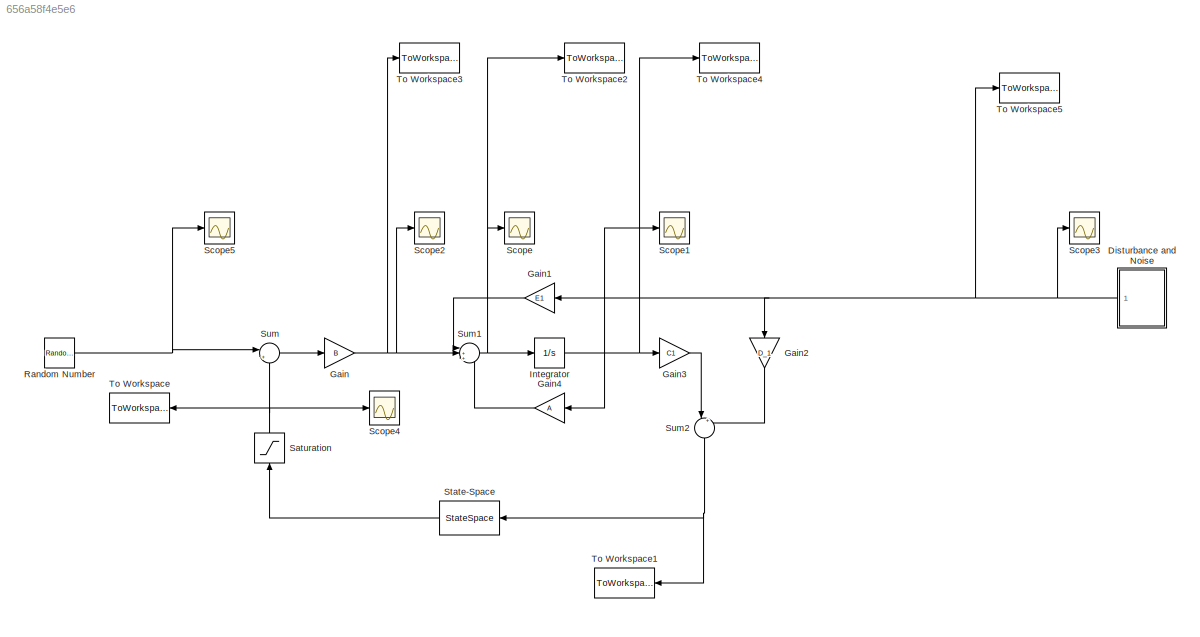
MODEL slx_656a58f4e5e6
KIND model
CONFIG AbsTol = auto
CONFIG EnableMultiTasking = off
CONFIG FixedStep = auto
CONFIG MaxStep = auto
CONFIG MinStep = auto
CONFIG RelTol = 1e-3
CONFIG SampleTimeConstraint = Unconstrained
CONFIG Solver = VariableStepAuto
CONFIG SolverName = VariableStepAuto
CONFIG StartTime = 0.0
CONFIG StopTime = 40
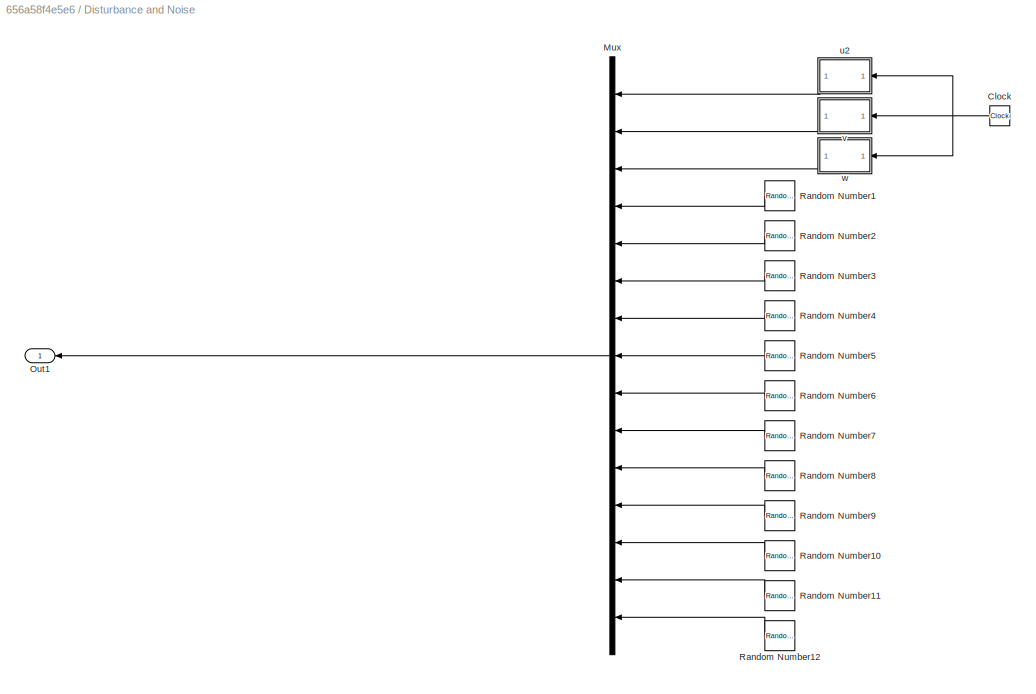
BLOCK [SubSystem] Disturbance and Noise
  Ports = [0, 1]
  RequestExecContextInheritance = off
BLOCK [Clock] Disturbance and Noise/Clock
BLOCK [Mux] Disturbance and Noise/Mux
  DisplayOption = bar
  Inputs = 15
  Ports = [15, 1]
BLOCK [Outport] Disturbance and Noise/Out1
  IconDisplay = Port number
BLOCK [RandomNumber] Disturbance and Noise/Random Number1
  SampleTime = 0.1
  Variance = 0.01
BLOCK [RandomNumber] Disturbance and Noise/Random Number10
  SampleTime = 0.1
  Seed = 9
  Variance = 0.01
BLOCK [RandomNumber] Disturbance and Noise/Random Number11
  SampleTime = 0.1
  Seed = 10
  Variance = 0.01
BLOCK [RandomNumber] Disturbance and Noise/Random Number12
  SampleTime = 0.1
  Seed = 11
  Variance = 0.01
BLOCK [RandomNumber] Disturbance and Noise/Random Number2
  SampleTime = 0.1
  Seed = 1
  Variance = 0.01
BLOCK [RandomNumber] Disturbance and Noise/Random Number3
  SampleTime = 0.1
  Seed = 2
  Variance = 0.01
BLOCK [RandomNumber] Disturbance and Noise/Random Number4
  SampleTime = 0.1
  Seed = 3
  Variance = 0.01
BLOCK [RandomNumber] Disturbance and Noise/Random Number5
  SampleTime = 0.1
  Seed = 4
  Variance = 0.01
BLOCK [RandomNumber] Disturbance and Noise/Random Number6
  SampleTime = 0.1
  Seed = 5
  Variance = 0.01
BLOCK [RandomNumber] Disturbance and Noise/Random Number7
  SampleTime = 0.1
  Seed = 6
  Variance = 0.01
BLOCK [RandomNumber] Disturbance and Noise/Random Number8
  SampleTime = 0.1
  Seed = 7
  Variance = 0.01
BLOCK [RandomNumber] Disturbance and Noise/Random Number9
  SampleTime = 0.1
  Seed = 8
  Variance = 0.01
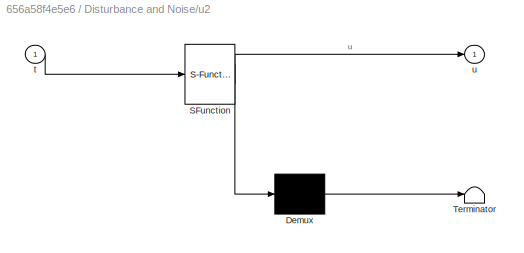
BLOCK [SubSystem] Disturbance and Noise/u2
  ErrorFcn = Stateflow.Translate.translate
  PermitHierarchicalResolution = ExplicitOnly
  Ports = [1, 1]
  RequestExecContextInheritance = off
  SFBlockType = MATLAB Function
  TreatAsAtomicUnit = on
BLOCK [Demux] Disturbance and Noise/u2/ Demux 
  Outputs = 1
  Ports = [1, 1]
BLOCK [S-Function] Disturbance and Noise/u2/ SFunction 
  EnableBusSupport = on
  FunctionName = sf_sfun
  PortCounts = [1 2]
  Ports = [1, 2]
  SFcnIsStateOwnerBlock = off
  SFunctionDeploymentMode = off
  Tag = Stateflow S-Function problem_2 2
BLOCK [Terminator] Disturbance and Noise/u2/ Terminator 
BLOCK [Inport] Disturbance and Noise/u2/t
  IconDisplay = Port number
BLOCK [Outport] Disturbance and Noise/u2/u
  IconDisplay = Port number
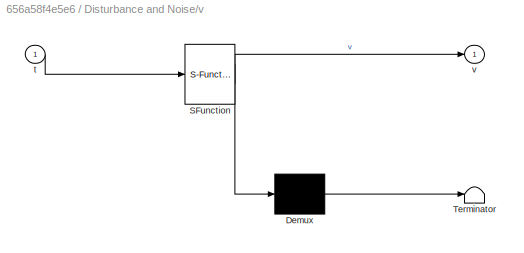
BLOCK [SubSystem] Disturbance and Noise/v
  ErrorFcn = Stateflow.Translate.translate
  PermitHierarchicalResolution = ExplicitOnly
  Ports = [1, 1]
  RequestExecContextInheritance = off
  SFBlockType = MATLAB Function
  TreatAsAtomicUnit = on
BLOCK [Demux] Disturbance and Noise/v/ Demux 
  Outputs = 1
  Ports = [1, 1]
BLOCK [S-Function] Disturbance and Noise/v/ SFunction 
  EnableBusSupport = on
  FunctionName = sf_sfun
  PortCounts = [1 2]
  Ports = [1, 2]
  SFcnIsStateOwnerBlock = off
  SFunctionDeploymentMode = off
  Tag = Stateflow S-Function problem_2 1
BLOCK [Terminator] Disturbance and Noise/v/ Terminator 
BLOCK [Inport] Disturbance and Noise/v/t
  IconDisplay = Port number
BLOCK [Outport] Disturbance and Noise/v/v
  IconDisplay = Port number
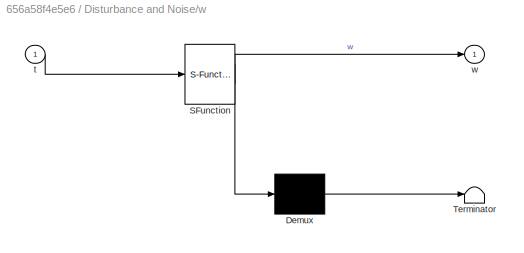
BLOCK [SubSystem] Disturbance and Noise/w
  ErrorFcn = Stateflow.Translate.translate
  PermitHierarchicalResolution = ExplicitOnly
  Ports = [1, 1]
  RequestExecContextInheritance = off
  SFBlockType = MATLAB Function
  TreatAsAtomicUnit = on
BLOCK [Demux] Disturbance and Noise/w/ Demux 
  Outputs = 1
  Ports = [1, 1]
BLOCK [S-Function] Disturbance and Noise/w/ SFunction 
  EnableBusSupport = on
  FunctionName = sf_sfun
  PortCounts = [1 2]
  Ports = [1, 2]
  SFcnIsStateOwnerBlock = off
  SFunctionDeploymentMode = off
  Tag = Stateflow S-Function problem_2 3
BLOCK [Terminator] Disturbance and Noise/w/ Terminator 
BLOCK [Inport] Disturbance and Noise/w/t
  IconDisplay = Port number
BLOCK [Outport] Disturbance and Noise/w/w
  IconDisplay = Port number
BLOCK [Gain] Gain
  Gain = B
  Multiplication = Matrix(K*u) (u vector)
  OutDataTypeStr = Inherit: Inherit via internal rule
  ParamDataTypeStr = Inherit: Inherit via internal rule
  SaturateOnIntegerOverflow = off
BLOCK [Gain] Gain1
  Gain = E1
  Multiplication = Matrix(K*u) (u vector)
  OutDataTypeStr = Inherit: Inherit via internal rule
  ParamDataTypeStr = Inherit: Inherit via internal rule
  SaturateOnIntegerOverflow = off
BLOCK [Gain] Gain2
  Gain = D_1
  Multiplication = Matrix(K*u) (u vector)
  OutDataTypeStr = Inherit: Inherit via internal rule
  ParamDataTypeStr = Inherit: Inherit via internal rule
  SaturateOnIntegerOverflow = off
BLOCK [Gain] Gain3
  Gain = C1
  Multiplication = Matrix(K*u) (u vector)
  OutDataTypeStr = Inherit: Inherit via internal rule
  ParamDataTypeStr = Inherit: Inherit via internal rule
  SaturateOnIntegerOverflow = off
BLOCK [Gain] Gain4
  Gain = A
  Multiplication = Matrix(K*u) (u vector)
  OutDataTypeStr = Inherit: Inherit via internal rule
  ParamDataTypeStr = Inherit: Inherit via internal rule
  SaturateOnIntegerOverflow = off
BLOCK [Integrator] Integrator
  Ports = [1, 1]
BLOCK [RandomNumber] Random Number
  SampleTime = 0.1
  Variance = 0.01
  VectorParams1D = off
BLOCK [Saturate] Saturation
  InputPortMap = u0
  LowerLimit = -0.35
  Ports = [1, 1]
  UpperLimit = 0.35
BLOCK [Scope] Scope
  Floating = off
  NumInputPorts = 1
  Ports = [1]
  ScopeSpecificationString = Simulink.scopes.TimeScopeBlockCfg('CurrentConfiguration', extmgr.ConfigurationSet(extmgr.Configuration('Core','General UI',true),extmgr.Configuration('Core','Source UI',true),extmgr.Configuration('Sources','WiredSimulink',true),extmgr.Configuration('Visuals','Time Domain',true,'SerializedDisplays',{struct('MinYLimReal','-45.84725','MaxYLimReal','41.19579','YLabelReal','','MinYLimMag','0.00000','Ma...<+1433ch>
BLOCK [Scope] Scope1
  Floating = off
  NumInputPorts = 1
  Ports = [1]
  ScopeSpecificationString = Simulink.scopes.TimeScopeBlockCfg('CurrentConfiguration', extmgr.ConfigurationSet(extmgr.Configuration('Core','General UI',true),extmgr.Configuration('Core','Source UI',true),extmgr.Configuration('Sources','WiredSimulink',true,'DataLoggingVariableName','ScopeData1'),extmgr.Configuration('Visuals','Time Domain',true,'SerializedDisplays',{struct('MinYLimReal','-2.12587','MaxYLimReal','2.43457','YLab...<+1491ch>
BLOCK [Scope] Scope2
  Floating = off
  NumInputPorts = 1
  Ports = [1]
  ScopeSpecificationString = Simulink.scopes.TimeScopeBlockCfg('CurrentConfiguration', extmgr.ConfigurationSet(extmgr.Configuration('Core','General UI',true),extmgr.Configuration('Core','Source UI',true),extmgr.Configuration('Sources','WiredSimulink',true,'DataLoggingVariableName','ScopeData2'),extmgr.Configuration('Visuals','Time Domain',true,'SerializedDisplays',{struct('MinYLimReal','-33.58073','MaxYLimReal','31.08112','YL...<+1472ch>
BLOCK [Scope] Scope3
  Floating = off
  NumInputPorts = 1
  Ports = [1]
  ScopeSpecificationString = Simulink.scopes.TimeScopeBlockCfg('CurrentConfiguration', extmgr.ConfigurationSet(extmgr.Configuration('Core','General UI',true),extmgr.Configuration('Core','Source UI',true),extmgr.Configuration('Sources','WiredSimulink',true,'DataLoggingVariableName','ScopeData3'),extmgr.Configuration('Visuals','Time Domain',true,'SerializedDisplays',{struct('MinYLimReal','-1.57318','MaxYLimReal','11.28591','YLa...<+1610ch>
BLOCK [Scope] Scope4
  Floating = off
  NumInputPorts = 1
  Ports = [1]
  ScopeSpecificationString = Simulink.scopes.TimeScopeBlockCfg('CurrentConfiguration', extmgr.ConfigurationSet(extmgr.Configuration('Core','General UI',true),extmgr.Configuration('Core','Source UI',true),extmgr.Configuration('Sources','WiredSimulink',true,'DataLoggingVariableName','ScopeData4'),extmgr.Configuration('Visuals','Time Domain',true,'SerializedDisplays',{struct('MinYLimReal','-0.625','MaxYLimReal','0.625','YLabelRe...<+1464ch>
BLOCK [Scope] Scope5
  Floating = off
  NumInputPorts = 1
  Ports = [1]
  ScopeSpecificationString = Simulink.scopes.TimeScopeBlockCfg('CurrentConfiguration', extmgr.ConfigurationSet(extmgr.Configuration('Core','General UI',true),extmgr.Configuration('Core','Source UI',true),extmgr.Configuration('Sources','WiredSimulink',true,'DataLoggingVariableName','ScopeData1'),extmgr.Configuration('Visuals','Time Domain',true,'SerializedDisplays',{struct('MinYLimReal','-0.36327','MaxYLimReal','0.39669','YLab...<+1410ch>
BLOCK [StateSpace] State-Space
  A = A+B*F+K*C1
  B = -K
  C = F
  D = zeros(3,9)
  InitialCondition = 0
  Ports = [1, 1]
BLOCK [Sum] Sum
  IconShape = round
  InputSameDT = off
  Inputs = |++
  OutDataTypeStr = Inherit: Inherit via internal rule
  Ports = [2, 1]
  SaturateOnIntegerOverflow = off
BLOCK [Sum] Sum1
  IconShape = round
  InputSameDT = off
  Inputs = |+++
  OutDataTypeStr = Inherit: Inherit via internal rule
  Ports = [3, 1]
  SaturateOnIntegerOverflow = off
BLOCK [Sum] Sum2
  IconShape = round
  InputSameDT = off
  Inputs = |++
  OutDataTypeStr = Inherit: Inherit via internal rule
  Ports = [2, 1]
  SaturateOnIntegerOverflow = off
BLOCK [ToWorkspace] To Workspace
  FixptAsFi = on
  MaxDataPoints = inf
  Ports = [1]
  SampleTime = -1
  Save2DSignal = 3-D array (concatenate along third dimension)
  VariableName = u
BLOCK [ToWorkspace] To Workspace1
  FixptAsFi = on
  MaxDataPoints = inf
  Ports = [1]
  SampleTime = -1
  Save2DSignal = 3-D array (concatenate along third dimension)
  VariableName = y
BLOCK [ToWorkspace] To Workspace2
  FixptAsFi = on
  MaxDataPoints = inf
  Ports = [1]
  SampleTime = -1
  Save2DSignal = 3-D array (concatenate along third dimension)
  VariableName = x_dot
BLOCK [ToWorkspace] To Workspace3
  FixptAsFi = on
  MaxDataPoints = inf
  Ports = [1]
  SampleTime = -1
  Save2DSignal = 3-D array (concatenate along third dimension)
  VariableName = u1
BLOCK [ToWorkspace] To Workspace4
  FixptAsFi = on
  MaxDataPoints = inf
  Ports = [1]
  SampleTime = -1
  Save2DSignal = 3-D array (concatenate along third dimension)
  VariableName = x
BLOCK [ToWorkspace] To Workspace5
  FixptAsFi = on
  MaxDataPoints = inf
  Ports = [1]
  SampleTime = -1
  Save2DSignal = 3-D array (concatenate along third dimension)
  VariableName = w_disturb
NET Disturbance and Noise/Clock:1 -> Disturbance and Noise/u2:1, Disturbance and Noise/v:1, Disturbance and Noise/w:1
LINE Disturbance and Noise/Mux:1 -> Disturbance and Noise/Out1:1
LINE Disturbance and Noise/Random Number10:1 -> Disturbance and Noise/Mux:13
LINE Disturbance and Noise/Random Number11:1 -> Disturbance and Noise/Mux:14
LINE Disturbance and Noise/Random Number12:1 -> Disturbance and Noise/Mux:15
LINE Disturbance and Noise/Random Number1:1 -> Disturbance and Noise/Mux:4
LINE Disturbance and Noise/Random Number2:1 -> Disturbance and Noise/Mux:5
LINE Disturbance and Noise/Random Number3:1 -> Disturbance and Noise/Mux:6
LINE Disturbance and Noise/Random Number4:1 -> Disturbance and Noise/Mux:7
LINE Disturbance and Noise/Random Number5:1 -> Disturbance and Noise/Mux:8
LINE Disturbance and Noise/Random Number6:1 -> Disturbance and Noise/Mux:9
LINE Disturbance and Noise/Random Number7:1 -> Disturbance and Noise/Mux:10
LINE Disturbance and Noise/Random Number8:1 -> Disturbance and Noise/Mux:11
LINE Disturbance and Noise/Random Number9:1 -> Disturbance and Noise/Mux:12
LINE Disturbance and Noise/u2:1 -> Disturbance and Noise/Mux:1
LINE Disturbance and Noise/v:1 -> Disturbance and Noise/Mux:2
LINE Disturbance and Noise/w:1 -> Disturbance and Noise/Mux:3
NET Disturbance and Noise:1 -> Gain1:1, Gain2:1, Scope3:1, To Workspace5:1
LINE Gain1:1 -> Sum1:1
LINE Gain2:1 -> Sum2:2
LINE Gain3:1 -> Sum2:1
LINE Gain4:1 -> Sum1:3
NET Gain:1 -> Scope2:1, Sum1:2, To Workspace3:1
NET Integrator:1 -> Gain3:1, Gain4:1, Scope1:1, To Workspace4:1
NET Random Number:1 -> Scope5:1, Sum:1
NET Saturation:1 -> Scope4:1, Sum:2, To Workspace:1
LINE State-Space:1 -> Saturation:1
NET Sum1:1 -> Integrator:1, Scope:1, To Workspace2:1
NET Sum2:1 -> State-Space:1, To Workspace1:1
LINE Sum:1 -> Gain:1
note: NET lines group one-source signal fan-out (src -> all destinations, sorted); 1:1 wires keep LINE
CHART Disturbance and Noise/v states=1 transitions=1
  STATE_LABEL 'eML_blk_kernel()'
  STATE_LABEL 'SCRIPT:\nfunction v = fcn(t)\nif (t>=10&&t<=30)\nv =10*cos(2*pi/40*(t-20));\nelse\n    v=0;\nend\n'
CHART Disturbance and Noise/u2 states=1 transitions=1
  STATE_LABEL 'eML_blk_kernel()'
  STATE_LABEL 'SCRIPT:\nfunction u = fcn(t)\nif (t>=10&&t<=30)\nu =10*cos(2*pi/40*(t-20));\nelse\n    u=0;\nend'
CHART Disturbance and Noise/w states=1 transitions=1
  STATE_LABEL 'eML_blk_kernel()'
  STATE_LABEL 'SCRIPT:\nfunction w = fcn(t)\nif (t>=10&&t<=30)\nw = 3*cos(2*pi/40*(t-20));\nelse\n    w=0;\nend'
